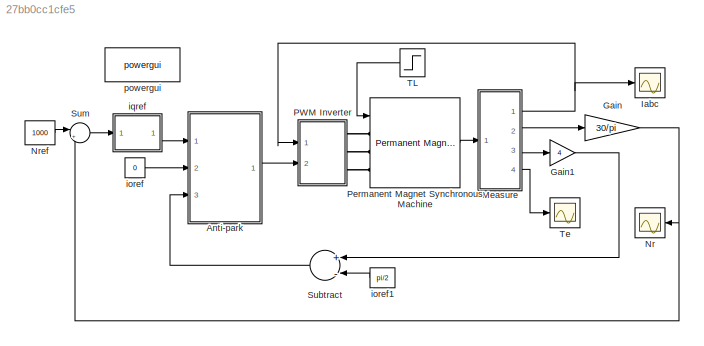
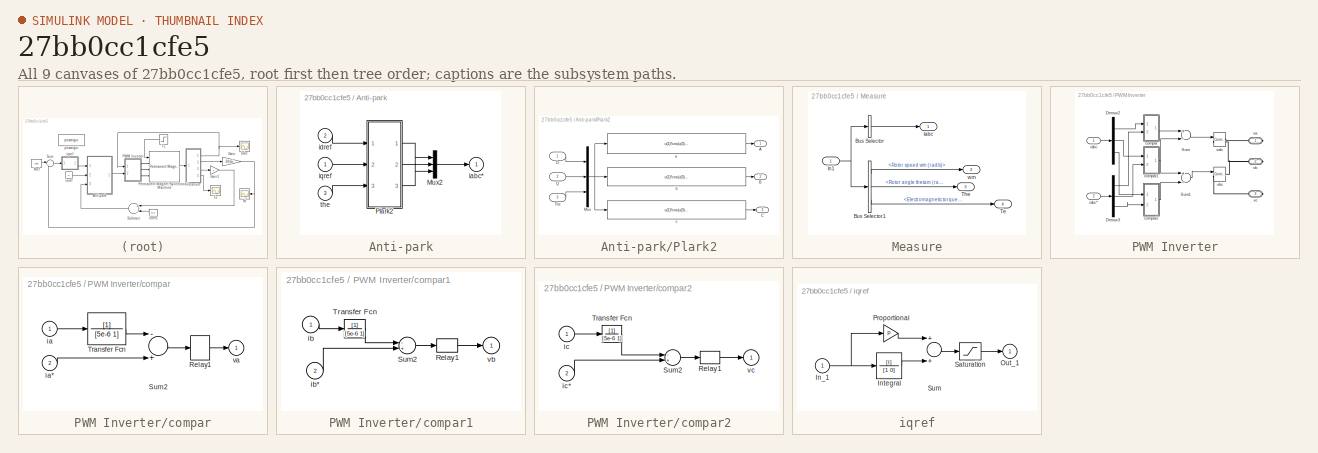
[diagram: thumbnail index - all 9 canvases of the model, root first then tree order]
MODEL slx_27bb0cc1cfe5
KIND model
BLOCK [SubSystem] Anti-park
  Ports = [3, 1]
  RequestExecContextInheritance = off
BLOCK [Mux] Anti-park/Mux2
  DisplayOption = bar
  Inputs = 3
  Ports = [3, 1]
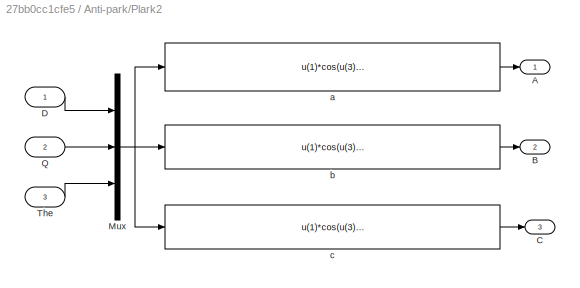
BLOCK [SubSystem] Anti-park/Plark2
  Ports = [3, 3]
  RequestExecContextInheritance = off
BLOCK [Outport] Anti-park/Plark2/A
  IconDisplay = Port number
BLOCK [Outport] Anti-park/Plark2/B
  IconDisplay = Port number
  Port = 2
BLOCK [Outport] Anti-park/Plark2/C
  IconDisplay = Port number
  Port = 3
BLOCK [Inport] Anti-park/Plark2/D
  IconDisplay = Port number
BLOCK [Mux] Anti-park/Plark2/Mux
  DisplayOption = bar
  Inputs = 3
  Ports = [3, 1]
BLOCK [Inport] Anti-park/Plark2/Q
  IconDisplay = Port number
  Port = 2
BLOCK [Inport] Anti-park/Plark2/The
  IconDisplay = Port number
  Port = 3
BLOCK [Fcn] Anti-park/Plark2/a
  Expr = u(1)*cos(u(3))-u(2)*sin(u(3))
BLOCK [Fcn] Anti-park/Plark2/b
  Expr = u(1)*cos(u(3)-2/3*pi)-u(2)*sin(u(3)-2/3*pi)
BLOCK [Fcn] Anti-park/Plark2/c
  Expr = u(1)*cos(u(3)+2/3*pi)-u(2)*sin(u(3)+2/3*pi)
BLOCK [Outport] Anti-park/iabc*
  IconDisplay = Port number
  InitialOutput = 0
BLOCK [Inport] Anti-park/idref
  IconDisplay = Port number
  Port = 2
BLOCK [Inport] Anti-park/iqref
  IconDisplay = Port number
BLOCK [Inport] Anti-park/the
  IconDisplay = Port number
  Port = 3
BLOCK [Gain] Gain
  Gain = 30/pi
BLOCK [Gain] Gain1
  Gain = 4
BLOCK [Scope] Iabc
  DataFormat = StructureWithTime
  Floating = off
  LimitDataPoints = off
  NumInputPorts = 1
  Ports = [1]
  SaveName = Iabc
  SaveToWorkspace = on
  ShowLegends = off
  TimeRange = 0.06
  YMax = 40
  YMin = -40
BLOCK [SubSystem] Measure
  Ports = [1, 4]
  RequestExecContextInheritance = off
BLOCK [BusSelector] Measure/Bus Selector
  OutputAsBus = on
  OutputSignals = Stator current is_a (A),Stator current is_b (A),Stator current is_c (A)
  Ports = [1, 1]
BLOCK [BusSelector] Measure/Bus Selector1
  OutputSignals = Rotor speed wm (rad/s),Rotor angle thetam (rad),Electromagnetic torque Te (N*m)
  Ports = [1, 3]
BLOCK [Outport] Measure/Iabc
  IconDisplay = Port number
BLOCK [Inport] Measure/In1
  IconDisplay = Port number
BLOCK [Outport] Measure/Te
  IconDisplay = Port number
  Port = 4
BLOCK [Outport] Measure/The
  IconDisplay = Port number
  Port = 3
BLOCK [Outport] Measure/wm
  IconDisplay = Port number
  Port = 2
BLOCK [Scope] Nr
  DataFormat = StructureWithTime
  Floating = off
  LimitDataPoints = off
  NumInputPorts = 1
  Ports = [1]
  SaveName = Nr
  SaveToWorkspace = on
  ShowLegends = off
  YMax = 999.2
  YMin = 997.2
BLOCK [Constant] Nref
  Value = 1000
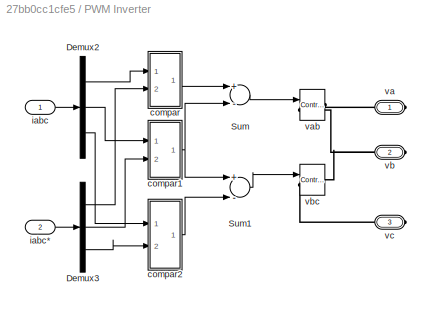
BLOCK [SubSystem] PWM Inverter
  Ports = [2, 0, 0, 0, 0, 0, 3]
  RequestExecContextInheritance = off
BLOCK [Demux] PWM Inverter/Demux2
  Outputs = 3
  Ports = [1, 3]
BLOCK [Demux] PWM Inverter/Demux3
  Outputs = 3
  Ports = [1, 3]
BLOCK [Sum] PWM Inverter/Sum
  Inputs = +-
  Ports = [2, 1]
BLOCK [Sum] PWM Inverter/Sum1
  Inputs = +-
  Ports = [2, 1]
BLOCK [SubSystem] PWM Inverter/compar
  Ports = [2, 1]
  RequestExecContextInheritance = off
BLOCK [Relay] PWM Inverter/compar/Relay1
  OffOutputValue = -155
  OffSwitchValue = -0.05
  OnOutputValue = 155
  OnSwitchValue = 0.05
BLOCK [Sum] PWM Inverter/compar/Sum2
  Inputs = -+
  Ports = [2, 1]
BLOCK [TransferFcn] PWM Inverter/compar/Transfer Fcn
  Denominator = [5e-6 1]
BLOCK [Inport] PWM Inverter/compar/ia
  IconDisplay = Port number
BLOCK [Inport] PWM Inverter/compar/ia*
  IconDisplay = Port number
  Port = 2
BLOCK [Outport] PWM Inverter/compar/va
  IconDisplay = Port number
  InitialOutput = 0
BLOCK [SubSystem] PWM Inverter/compar1
  Ports = [2, 1]
  RequestExecContextInheritance = off
BLOCK [Relay] PWM Inverter/compar1/Relay1
  OffOutputValue = -155
  OffSwitchValue = -0.05
  OnOutputValue = 155
  OnSwitchValue = 0.05
BLOCK [Sum] PWM Inverter/compar1/Sum2
  Inputs = -+
  Ports = [2, 1]
BLOCK [TransferFcn] PWM Inverter/compar1/Transfer Fcn
  Denominator = [5e-6 1]
BLOCK [Inport] PWM Inverter/compar1/ib
  IconDisplay = Port number
BLOCK [Inport] PWM Inverter/compar1/ib*
  IconDisplay = Port number
  Port = 2
BLOCK [Outport] PWM Inverter/compar1/vb
  IconDisplay = Port number
  InitialOutput = 0
BLOCK [SubSystem] PWM Inverter/compar2
  Ports = [2, 1]
  RequestExecContextInheritance = off
BLOCK [Relay] PWM Inverter/compar2/Relay1
  OffOutputValue = -155
  OffSwitchValue = -0.05
  OnOutputValue = 155
  OnSwitchValue = 0.05
BLOCK [Sum] PWM Inverter/compar2/Sum2
  Inputs = -+
  Ports = [2, 1]
BLOCK [TransferFcn] PWM Inverter/compar2/Transfer Fcn
  Denominator = [5e-6 1]
BLOCK [Inport] PWM Inverter/compar2/ic
  IconDisplay = Port number
BLOCK [Inport] PWM Inverter/compar2/ic*
  IconDisplay = Port number
  Port = 2
BLOCK [Outport] PWM Inverter/compar2/vc
  IconDisplay = Port number
  InitialOutput = 0
BLOCK [Inport] PWM Inverter/iabc
  IconDisplay = Port number
BLOCK [Inport] PWM Inverter/iabc*
  IconDisplay = Port number
  Port = 2
BLOCK [PMIOPort] PWM Inverter/va
  Port = 1
  Side = Right
BLOCK [Reference] PWM Inverter/vab  REF=powerlib/Electrical
Sources/Controlled Voltage Source
  Amplitude = 0
  AttributesFormatString = \n
  Description = source block
  Frequency = 0
  Initialize = on
  Measurements = None
  Phase = 0
  Ports = [1, 0, 0, 0, 0, 1, 1]
  SourceBlock = powerlib/Electrical\nSources/Controlled Voltage Source
  SourceType = Controlled Voltage Source
  Source_Type = AC
BLOCK [PMIOPort] PWM Inverter/vb
  Port = 2
  Side = Right
BLOCK [Reference] PWM Inverter/vbc  REF=powerlib/Electrical
Sources/Controlled Voltage Source
  Amplitude = 0
  AttributesFormatString = \n
  Description = source block
  Frequency = 0
  Initialize = on
  Measurements = None
  Phase = 0
  Ports = [1, 0, 0, 0, 0, 1, 1]
  SourceBlock = powerlib/Electrical\nSources/Controlled Voltage Source
  SourceType = Controlled Voltage Source
  Source_Type = AC
BLOCK [PMIOPort] PWM Inverter/vc
  Port = 3
  Side = Right
BLOCK [Reference] Permanent Magnet Synchronous Machine  REF=powerlib/Machines/Permanent Magnet
Synchronous Machine
  Flat = 120
  Flux = 0.175
  FluxDistribution = Sinusoidal
  Inductance = 8.5e-3
  InitialConditions = [0,0, 0,0]
  InitialConditions5ph = [0 0 0 0 0 0]
  La = 0.00153
  MachineConstant = Flux linkage established by magnets (V.s)
  MeasurementBus = off
  Mechanical = [0.8e-3, 0 4]
  MechanicalLoad = Torque Tm
  NbPhases = 3
  PolePairs = 4
  Ports = [1, 1, 0, 0, 0, 3]
  PresetModel = No
  RefAngle = 90 degrees behind phase A axis (modified Park)
  Resistance = 2.875
  RotorType = Salient-pole
  ShowDetailedParameters = on
  SourceBlock = powerlib/Machines/Permanent Magnet\nSynchronous Machine
  SourceType = Permanent Magnet Synchronous Machine
  TorqueCst = 1.05
  TsBlock = -1
  TsPowergui = 0
  VoltageCst = 126.966
  dqInductances = [8.5e-3,8.5e-3]
BLOCK [Sum] Subtract
  InputSameDT = off
  Inputs = +-
  OutDataTypeStr = Inherit: Inherit via internal rule
  Ports = [2, 1]
  SaturateOnIntegerOverflow = off
BLOCK [Sum] Sum
  IconShape = round
  InputSameDT = off
  Inputs = |+-
  OutDataTypeStr = Inherit: Inherit via internal rule
  Ports = [2, 1]
  SaturateOnIntegerOverflow = off
BLOCK [Step] TL
  Before = 3
  SampleTime = 0
  Time = 0.05
BLOCK [Scope] Te 
  DataFormat = StructureWithTime
  Floating = off
  LimitDataPoints = off
  NumInputPorts = 1
  Ports = [1]
  SaveName = Te
  SaveToWorkspace = on
  ShowLegends = off
  ZoomMode = yonly
BLOCK [Constant] ioref
  Value = 0
BLOCK [Constant] ioref1
  Value = pi/2
BLOCK [SubSystem] iqref
  Ports = [1, 1]
  RequestExecContextInheritance = off
BLOCK [Inport] iqref/In_1
  IconDisplay = Port number
BLOCK [TransferFcn] iqref/Integral
  Denominator = [1 0]
  Numerator = [I]
BLOCK [Outport] iqref/Out_1
  IconDisplay = Port number
  InitialOutput = 0
BLOCK [Gain] iqref/Proportional
  Gain = P
BLOCK [Saturate] iqref/Saturation
  InputPortMap = u0
  LowerLimit = min
  Ports = [1, 1]
  UpperLimit = max
BLOCK [Sum] iqref/Sum
  Ports = [2, 1]
BLOCK [Reference] powergui  REF=powerlib/powergui
  DisableRonSwitches = off
  DisableSnubberDevices = off
  DisableVfSwitches = off
  DisplayEquations = off
  DisplayStyle = 1
  EnableUseOfTLC = off
  ErrMax = 1e-4
  Frange = [0:2:500]
  FreqAxis = off
  FunctionMessages = off
  HookPort = off
  Interpol = off
  Iterations = 50
  MaxFrequency = 1000
  Pbase = 100e6
  Ports = []
  ResistiveCurrentMeasurement = off
  RestoreLinks = warning
  RmsSteady = 1
  SPID = on
  SampleTime = 0
  ShowGrid = off
  SolverType = Tustin
  SourceBlock = powerlib/powergui
  SourceType = PSB option menu block
  StartTime = 0.0
  SwTol = 0
  Ts = 0
  UnitsV = kV
  UnitsW = MW
  UserDataPersistent = on
  Xlog = on
  Ylog = off
  ZoomFFT = on
  cycles = 1
  display = off
  echomessages = off
  frequency = 60
  frequencyindice = 0
  frequencyindicesteady = 1
  fundamental = 60
  methode = off
  save = off
  structure = 0
  variable = ZData
  x0status = blocks
LINE Anti-park/Mux2:1 -> Anti-park/iabc*:1
LINE Anti-park/Plark2/D:1 -> Anti-park/Plark2/Mux:1
NET Anti-park/Plark2/Mux:1 -> Anti-park/Plark2/a:1, Anti-park/Plark2/b:1, Anti-park/Plark2/c:1
LINE Anti-park/Plark2/Q:1 -> Anti-park/Plark2/Mux:2
LINE Anti-park/Plark2/The:1 -> Anti-park/Plark2/Mux:3
LINE Anti-park/Plark2/a:1 -> Anti-park/Plark2/A:1
LINE Anti-park/Plark2/b:1 -> Anti-park/Plark2/B:1
LINE Anti-park/Plark2/c:1 -> Anti-park/Plark2/C:1
LINE Anti-park/Plark2:1 -> Anti-park/Mux2:1
LINE Anti-park/Plark2:2 -> Anti-park/Mux2:2
LINE Anti-park/Plark2:3 -> Anti-park/Mux2:3
LINE Anti-park/idref:1 -> Anti-park/Plark2:1
LINE Anti-park/iqref:1 -> Anti-park/Plark2:2
LINE Anti-park/the:1 -> Anti-park/Plark2:3
LINE Anti-park:1 -> PWM Inverter:2
LINE Gain1:1 -> Subtract:1
NET Gain:1 -> Nr:1, Sum:2
LINE Measure/Bus Selector1:1 -> Measure/wm:1
LINE Measure/Bus Selector1:2 -> Measure/The:1
LINE Measure/Bus Selector1:3 -> Measure/Te:1
LINE Measure/Bus Selector:1 -> Measure/Iabc:1
NET Measure/In1:1 -> Measure/Bus Selector1:1, Measure/Bus Selector:1
NET Measure:1 -> Iabc:1, PWM Inverter:1
LINE Measure:2 -> Gain:1
LINE Measure:3 -> Gain1:1
LINE Measure:4 -> Te :1
LINE Nref:1 -> Sum:1
LINE PWM Inverter/Demux2:1 -> PWM Inverter/compar:1
LINE PWM Inverter/Demux2:2 -> PWM Inverter/compar1:1
LINE PWM Inverter/Demux2:3 -> PWM Inverter/compar2:1
LINE PWM Inverter/Demux3:1 -> PWM Inverter/compar:2
LINE PWM Inverter/Demux3:2 -> PWM Inverter/compar1:2
LINE PWM Inverter/Demux3:3 -> PWM Inverter/compar2:2
LINE PWM Inverter/Sum1:1 -> PWM Inverter/vbc:1
LINE PWM Inverter/Sum:1 -> PWM Inverter/vab:1
LINE PWM Inverter/compar/Relay1:1 -> PWM Inverter/compar/va:1
LINE PWM Inverter/compar/Sum2:1 -> PWM Inverter/compar/Relay1:1
LINE PWM Inverter/compar/Transfer Fcn:1 -> PWM Inverter/compar/Sum2:1
LINE PWM Inverter/compar/ia*:1 -> PWM Inverter/compar/Sum2:2
LINE PWM Inverter/compar/ia:1 -> PWM Inverter/compar/Transfer Fcn:1
LINE PWM Inverter/compar1/Relay1:1 -> PWM Inverter/compar1/vb:1
LINE PWM Inverter/compar1/Sum2:1 -> PWM Inverter/compar1/Relay1:1
LINE PWM Inverter/compar1/Transfer Fcn:1 -> PWM Inverter/compar1/Sum2:1
LINE PWM Inverter/compar1/ib*:1 -> PWM Inverter/compar1/Sum2:2
LINE PWM Inverter/compar1/ib:1 -> PWM Inverter/compar1/Transfer Fcn:1
NET PWM Inverter/compar1:1 -> PWM Inverter/Sum1:1, PWM Inverter/Sum:2
LINE PWM Inverter/compar2/Relay1:1 -> PWM Inverter/compar2/vc:1
LINE PWM Inverter/compar2/Sum2:1 -> PWM Inverter/compar2/Relay1:1
LINE PWM Inverter/compar2/Transfer Fcn:1 -> PWM Inverter/compar2/Sum2:1
LINE PWM Inverter/compar2/ic*:1 -> PWM Inverter/compar2/Sum2:2
LINE PWM Inverter/compar2/ic:1 -> PWM Inverter/compar2/Transfer Fcn:1
LINE PWM Inverter/compar2:1 -> PWM Inverter/Sum1:2
LINE PWM Inverter/compar:1 -> PWM Inverter/Sum:1
LINE PWM Inverter/iabc*:1 -> PWM Inverter/Demux3:1
LINE PWM Inverter/iabc:1 -> PWM Inverter/Demux2:1
LINE Permanent Magnet Synchronous Machine:1 -> Measure:1
LINE Subtract:1 -> Anti-park:3
LINE Sum:1 -> iqref:1
LINE TL:1 -> Permanent Magnet Synchronous Machine:1
LINE ioref1:1 -> Subtract:2
LINE ioref:1 -> Anti-park:2
NET iqref/In_1:1 -> iqref/Integral:1, iqref/Proportional:1
LINE iqref/Integral:1 -> iqref/Sum:2
LINE iqref/Proportional:1 -> iqref/Sum:1
LINE iqref/Saturation:1 -> iqref/Out_1:1
LINE iqref/Sum:1 -> iqref/Saturation:1
LINE iqref:1 -> Anti-park:1
PLINE PWM Inverter/va:RConn1 -- PWM Inverter/vab:RConn1
PNET net1: PWM Inverter/vab:LConn1 -- PWM Inverter/vb:RConn1 -- PWM Inverter/vbc:RConn1
PLINE PWM Inverter/vbc:LConn1 -- PWM Inverter/vc:RConn1
PLINE PWM Inverter:RConn1 -- Permanent Magnet Synchronous Machine:LConn1
PLINE PWM Inverter:RConn2 -- Permanent Magnet Synchronous Machine:LConn2
PLINE PWM Inverter:RConn3 -- Permanent Magnet Synchronous Machine:LConn3
note: NET lines group one-source signal fan-out (src -> all destinations, sorted); 1:1 wires keep LINE; PNET lines group multi-terminal physical nets as a canonical sorted terminal list (undirected conserving connections); 2-terminal nets keep the pairwise PLINE form
